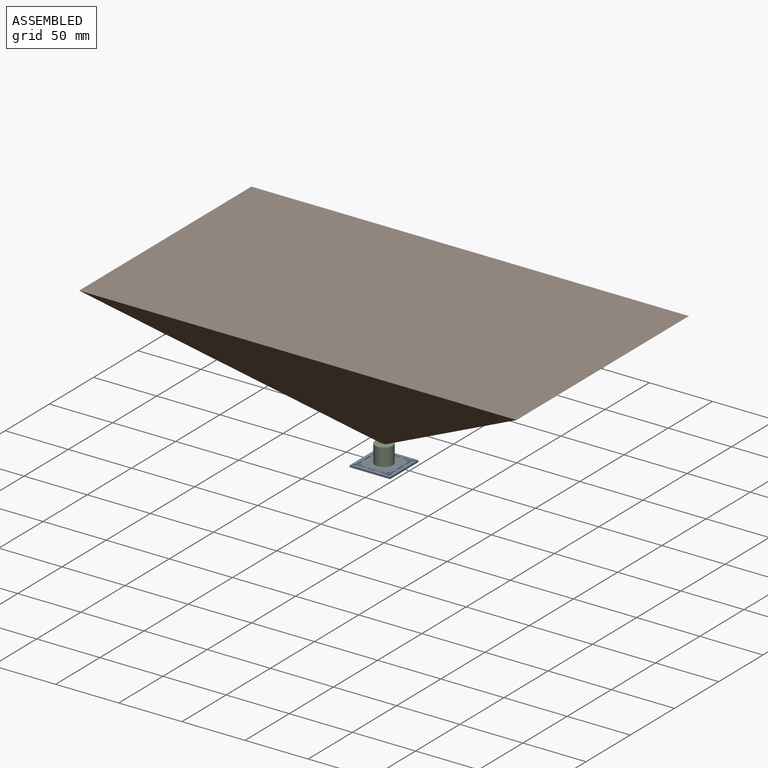
[diagram: assembled view]
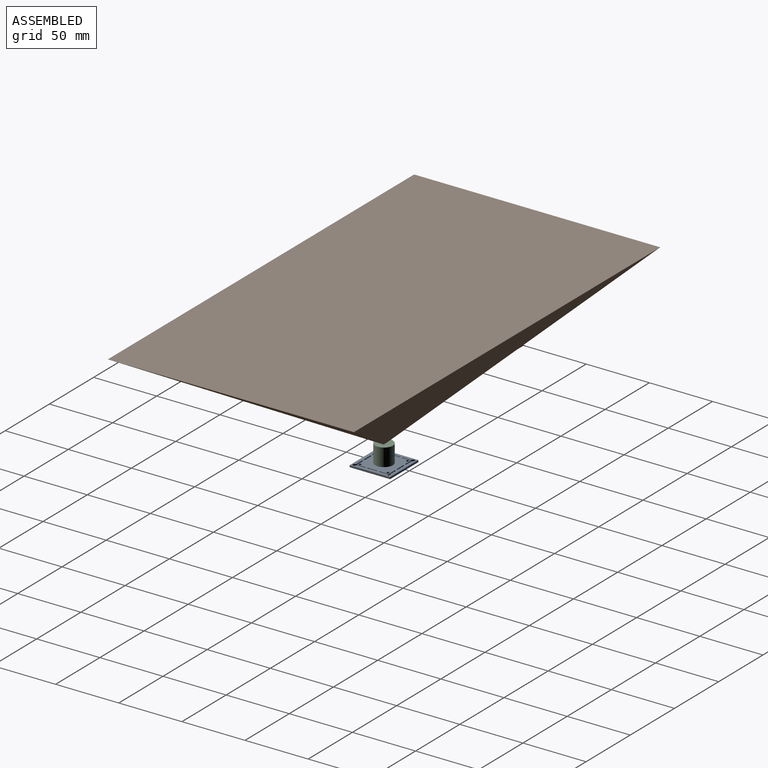
[diagram: assembled view, second angle]
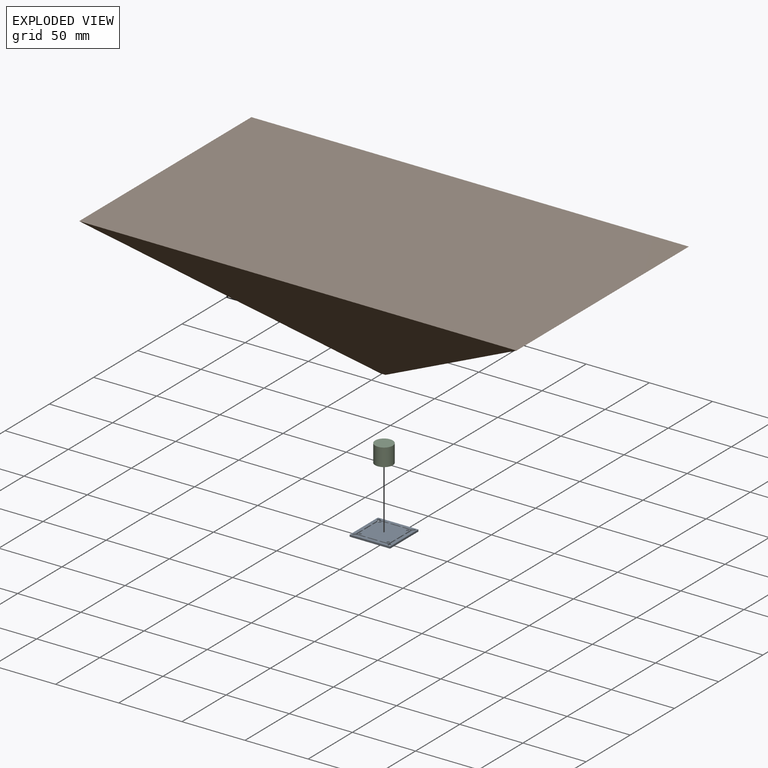
[diagram: exploded view]
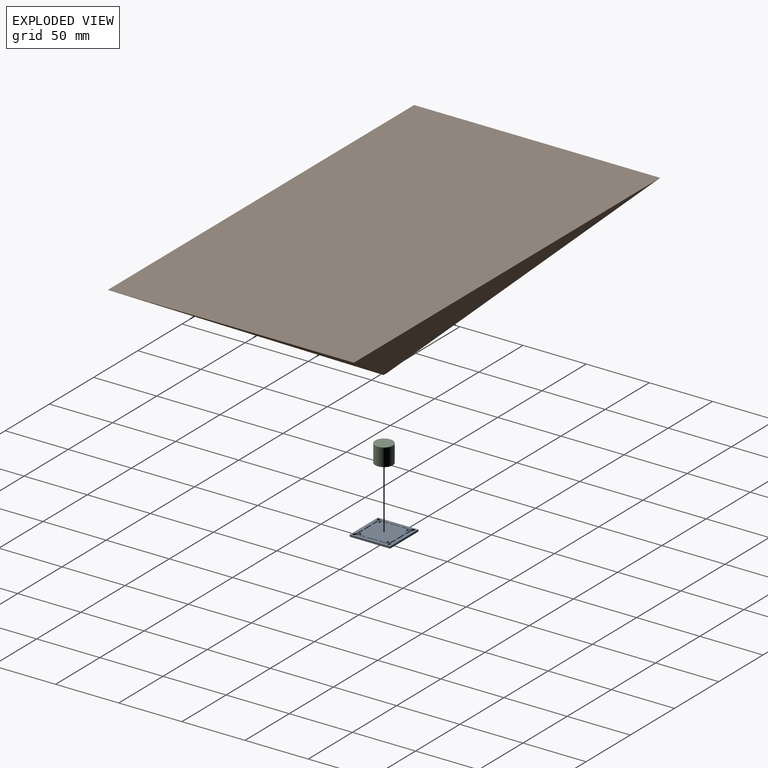
[diagram: exploded view, second angle]
ASSEMBLY  parts=3 mates=2
PART A: 62 faces, bbox 32x32x1.5 mm
  f0: cylinder r=0.5mm len=1.5mm, axis (0,0,1), area 2.4mm2, adj f1,f59,f60,f61
  f1: plane 7x1.5mm, normal (0,-1,0), area 10.5mm2, adj f0,f2,f60,f61
  f2: cylinder r=0.5mm len=1.5mm, axis (0,0,1), area 2.4mm2, adj f1,f59,f60,f61
  f3: plane 7x1.5mm, normal (1,0,0), area 10.5mm2, adj f4,f47,f60,f61
  f4: cylinder r=0.5mm len=1.5mm, axis (0,0,1), area 2.4mm2, adj f3,f5,f60,f61
  f5: plane 7x1.5mm, normal (-1,0,0), area 10.5mm2, adj f4,f47,f60,f61
  f6: plane 7x1.5mm, normal (0,1,0), area 10.5mm2, adj f7,f48,f60,f61
  f7: cylinder r=0.5mm len=1.5mm, axis (0,0,1), area 2.4mm2, adj f6,f8,f60,f61
  f8: plane 7x1.5mm, normal (0,-1,0), area 10.5mm2, adj f7,f48,f60,f61
  f9: plane 7x1.5mm, normal (-1,0,0), area 10.5mm2, adj f10,f49,f60,f61
  f10: cylinder r=0.5mm len=1.5mm, axis (0,0,1), area 2.4mm2, adj f9,f11,f60,f61
  f11: plane 7x1.5mm, normal (1,0,0), area 10.5mm2, adj f10,f49,f60,f61
  f12: plane 6.5x1.5mm, normal (1,0,0), area 9.8mm2, adj f13,f54,f60,f61
  f13: plane 6.5x1.5mm, normal (0,1,0), area 9.8mm2, adj f12,f14,f60,f61
  f14: cylinder r=0.5mm len=1.5mm, axis (0,0,1), area 2.4mm2, adj f13,f15,f60,f61
  f15: plane 6.09x1.5mm, normal (0,-1,0), area 9.1mm2, adj f14,f16,f60,f61
  f16: plane 1.5x1.21mm, normal (0.71,-0.71,0), area 2.6mm2, adj f15,f17,f60,f61
  f17: cylinder r=1mm len=1.71mm, axis (0,0,1), area 4.7mm2, adj f16,f18,f60,f61
  f18: plane 1.5x1.21mm, normal (-0.71,0.71,0), area 2.6mm2, adj f17,f19,f60,f61
  f19: plane 6.09x1.5mm, normal (-1,0,0), area 9.1mm2, adj f18,f54,f60,f61
  f20: plane 6.5x1.5mm, normal (0,-1,0), area 9.8mm2, adj f21,f55,f60,f61
  f21: plane 6.5x1.5mm, normal (1,0,0), area 9.8mm2, adj f20,f22,f60,f61
  f22: cylinder r=0.5mm len=1.5mm, axis (0,0,1), area 2.4mm2, adj f21,f23,f60,f61
  f23: plane 6.09x1.5mm, normal (-1,0,0), area 9.1mm2, adj f22,f24,f60,f61
  f24: plane 1.5x1.21mm, normal (-0.71,-0.71,0), area 2.6mm2, adj f23,f25,f60,f61
  f25: cylinder r=1mm len=1.71mm, axis (0,0,1), area 4.7mm2, adj f24,f26,f60,f61
  f26: plane 1.5x1.21mm, normal (0.71,0.71,0), area 2.6mm2, adj f25,f27,f60,f61
  f27: plane 6.09x1.5mm, normal (0,1,0), area 9.1mm2, adj f26,f55,f60,f61
  f28: plane 6.5x1.5mm, normal (-1,0,0), area 9.8mm2, adj f29,f56,f60,f61
  f29: plane 6.5x1.5mm, normal (0,-1,0), area 9.8mm2, adj f28,f30,f60,f61
  f30: cylinder r=0.5mm len=1.5mm, axis (0,0,1), area 2.4mm2, adj f29,f31,f60,f61
  f31: plane 6.09x1.5mm, normal (0,1,0), area 9.1mm2, adj f30,f32,f60,f61
  f32: plane 1.5x1.21mm, normal (-0.71,0.71,0), area 2.6mm2, adj f31,f33,f60,f61
  f33: cylinder r=1mm len=1.71mm, axis (0,0,1), area 4.7mm2, adj f32,f34,f60,f61
  f34: plane 1.5x1.21mm, normal (0.71,-0.71,0), area 2.6mm2, adj f33,f35,f60,f61
  f35: plane 6.09x1.5mm, normal (1,0,0), area 9.1mm2, adj f34,f56,f60,f61
  f36: plane 1.5x1.21mm, normal (0.71,0.71,0), area 2.6mm2, adj f37,f57,f60,f61
  f37: cylinder r=1mm len=1.71mm, axis (0,0,1), area 4.7mm2, adj f36,f38,f60,f61
  f38: plane 1.5x1.21mm, normal (-0.71,-0.71,0), area 2.6mm2, adj f37,f39,f60,f61
  f39: plane 6.09x1.5mm, normal (0,-1,0), area 9.1mm2, adj f38,f40,f60,f61
  f40: cylinder r=0.5mm len=1.5mm, axis (0,0,1), area 2.4mm2, adj f39,f41,f60,f61
  f41: plane 6.5x1.5mm, normal (0,1,0), area 9.8mm2, adj f40,f42,f60,f61
  f42: plane 6.5x1.5mm, normal (-1,0,0), area 9.8mm2, adj f41,f43,f60,f61
  f43: cylinder r=0.5mm len=1.5mm, axis (0,0,1), area 2.4mm2, adj f42,f57,f60,f61
  f44: plane 32x1.5mm, normal (1,0,0), area 48mm2, adj f45,f58,f60,f61
  f45: plane 32x1.5mm, normal (0,1,0), area 48mm2, adj f44,f46,f60,f61
  f46: plane 32x1.5mm, normal (-1,0,0), area 48mm2, adj f45,f58,f60,f61
  f47: cylinder r=0.5mm len=1.5mm, axis (0,0,1), area 2.4mm2, adj f3,f5,f60,f61
  f48: cylinder r=0.5mm len=1.5mm, axis (0,0,1), area 2.4mm2, adj f6,f8,f60,f61
  f49: cylinder r=0.5mm len=1.5mm, axis (0,0,1), area 2.4mm2, adj f9,f11,f60,f61
  f50: cylinder r=1mm len=2mm, axis (0,0,1), area 9.4mm2, adj f60,f61
  f51: cylinder r=1mm len=2mm, axis (0,0,1), area 9.4mm2, adj f60,f61
  f52: cylinder r=1mm len=2mm, axis (0,0,1), area 9.4mm2, adj f60,f61
  f53: cylinder r=1mm len=2mm, axis (0,0,1), area 9.4mm2, adj f60,f61
  f54: cylinder r=0.5mm len=1.5mm, axis (0,0,1), area 2.4mm2, adj f12,f19,f60,f61
  f55: cylinder r=0.5mm len=1.5mm, axis (0,0,1), area 2.4mm2, adj f20,f27,f60,f61
  f56: cylinder r=0.5mm len=1.5mm, axis (0,0,1), area 2.4mm2, adj f28,f35,f60,f61
  f57: plane 6.09x1.5mm, normal (1,0,0), area 9.1mm2, adj f36,f43,f60,f61
  f58: plane 32x1.5mm, normal (0,-1,0), area 48mm2, adj f44,f46,f60,f61
  f59: plane 7x1.5mm, normal (0,1,0), area 10.5mm2, adj f0,f2,f60,f61
  f60: plane 32x32mm, normal (0,0,-1), area 905.2mm2, adj f0,f1,f2,f3,f4,f5,f6,f7
  f61: plane 32x32mm, normal (0,0,1), area 905.2mm2, adj f0,f1,f2,f3,f4,f5,f6,f7
PART B: 6 faces, bbox 346.4x194.9x100 mm
  f0: plane 346.41x194.86mm, normal (0,0,1), area 67500mm2, adj f2,f3,f4,f5
  f1: plane 3.84x2.16mm, normal (0,0,-1), area 8.3mm2, adj f2,f3,f4,f5
  f2: plane 194.86x171.29mm, normal (0.5,0,-0.86), area 19538mm2, adj f0,f1,f3,f5
  f3: plane 346.41x100mm, normal (0,-0.72,-0.69), area 24318.4mm2, adj f0,f1,f2,f4
  f4: plane 194.86x171.29mm, normal (-0.5,0,-0.86), area 19538mm2, adj f0,f1,f3,f5
  f5: plane 346.41x100mm, normal (0,0.72,-0.69), area 24318.4mm2, adj f0,f1,f2,f4
PART C: 3 faces, bbox 14x14x14 mm
  f0: cylinder r=7mm len=14mm, axis (0,0,-1), area 615.8mm2, adj f1,f2
  f1: plane 14x14mm, normal (0,0,1), area 153.9mm2, adj f0
  f2: plane 14x14mm, normal (0,0,-1), area 153.9mm2, adj f0
PLACE A at identity
PLACE B t=(0,0,14)mm
PLACE C at identity
MATE fastened B.f1 <-> C.f0  axis (0,0,-1) through (0,0,14)mm
MATE fastened C.f0 <-> A.f61  axis (0,0,-1) through (0,0,0)mm
